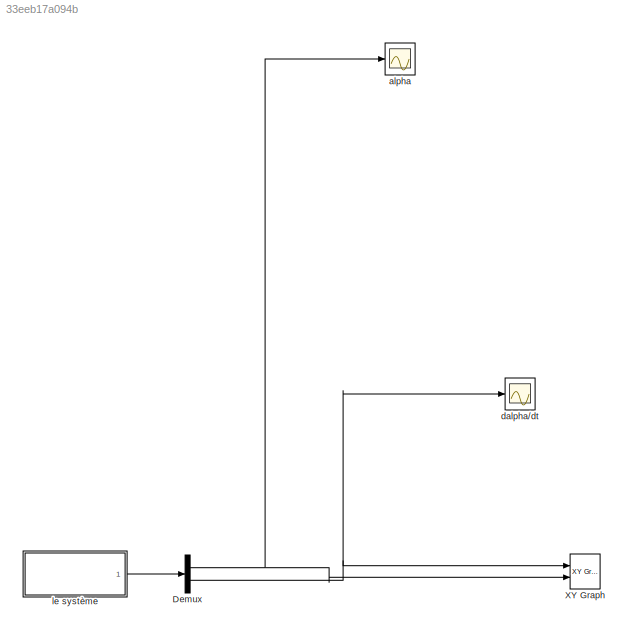
MODEL slx_33eeb17a094b
KIND model
CONFIG AbsTol = auto
CONFIG FixedStep = 0.1
CONFIG MaxStep = auto
CONFIG MinStep = auto
CONFIG RelTol = 1e-8
CONFIG SampleTimeConstraint = Unconstrained
CONFIG Solver = ode3
CONFIG SolverMode = Auto
CONFIG SolverName = ode3
CONFIG StartTime = 0.0
CONFIG StopTime = 100
BLOCK [Demux] Demux
  DisplayOption = bar
  Outputs = 2
  Ports = [1, 2]
BLOCK [Reference] XY Graph  REF=simulink/Sinks/XY Graph
  Ports = [2]
  SourceBlock = simulink/Sinks/XY Graph
  SourceType = XY scope.
  st = -1
  xmax = 1
  xmin = -1
  ymax = 1
  ymin = -1
BLOCK [Scope] alpha
  Floating = off
  NumInputPorts = 1
  Ports = [1]
BLOCK [Scope] dalpha//dt
  Floating = off
  NumInputPorts = 1
  Ports = [1]
  SaveName = ScopeData1
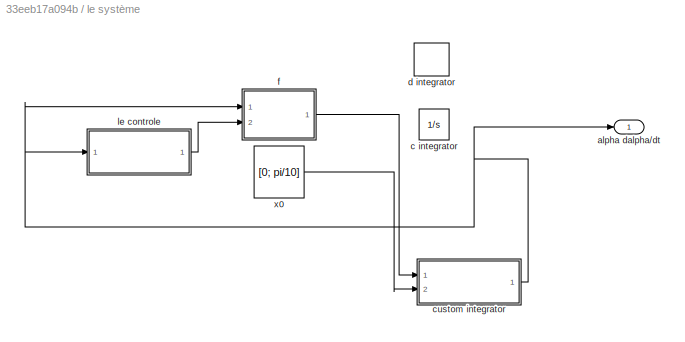
BLOCK [SubSystem] le système
  Ports = [0, 1]
  RequestExecContextInheritance = off
BLOCK [Outport] le système/alpha dalpha//dt
  IconDisplay = Port number
BLOCK [Integrator] le système/c integrator
  InitialConditionSource = external
  Ports = [2, 1]
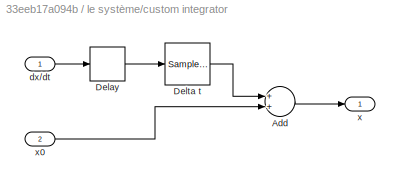
BLOCK [SubSystem] le système/custom integrator
  Ports = [2, 1]
  RequestExecContextInheritance = off
  TreatAsAtomicUnit = on
BLOCK [Sum] le système/custom integrator/Add
  InputSameDT = off
  OutDataTypeStr = Inherit: Inherit via internal rule
  Ports = [2, 1]
  SaturateOnIntegerOverflow = off
BLOCK [Delay] le système/custom integrator/Delay
  InputPortMap = u0
  Ports = [1, 1]
BLOCK [SampleTimeMath] le système/custom integrator/Delta t
  TsampMathOp = *
  weightValue = 1
BLOCK [Inport] le système/custom integrator/dx//dt
  IconDisplay = Port number
BLOCK [Outport] le système/custom integrator/x
  IconDisplay = Port number
BLOCK [Inport] le système/custom integrator/x0
  IconDisplay = Port number
  Port = 2
BLOCK [DiscreteIntegrator] le système/d integrator
  InitialConditionSetting = State (most efficient)
  InitialConditionSource = external
  Ports = [2, 1]
  SampleTime = 0.1
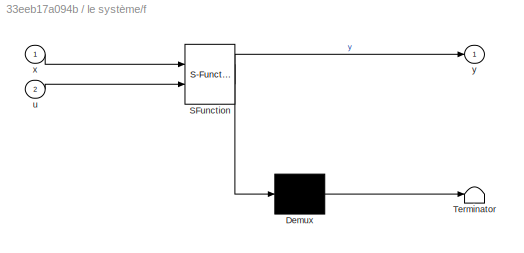
BLOCK [SubSystem] le système/f
  ErrorFcn = Stateflow.Translate.translate
  PermitHierarchicalResolution = ExplicitOnly
  Ports = [2, 1]
  RequestExecContextInheritance = off
  SFBlockType = MATLAB Function
  TreatAsAtomicUnit = on
BLOCK [Demux] le système/f/ Demux 
  Outputs = 1
  Ports = [1, 1]
BLOCK [S-Function] le système/f/ SFunction 
  EnableBusSupport = on
  FunctionName = sf_sfun
  PortCounts = [2 2]
  Ports = [2, 2]
  Tag = Stateflow S-Function part3 2
BLOCK [Terminator] le système/f/ Terminator 
BLOCK [Inport] le système/f/u
  IconDisplay = Port number
  Port = 2
BLOCK [Inport] le système/f/x
  IconDisplay = Port number
BLOCK [Outport] le système/f/y
  IconDisplay = Port number
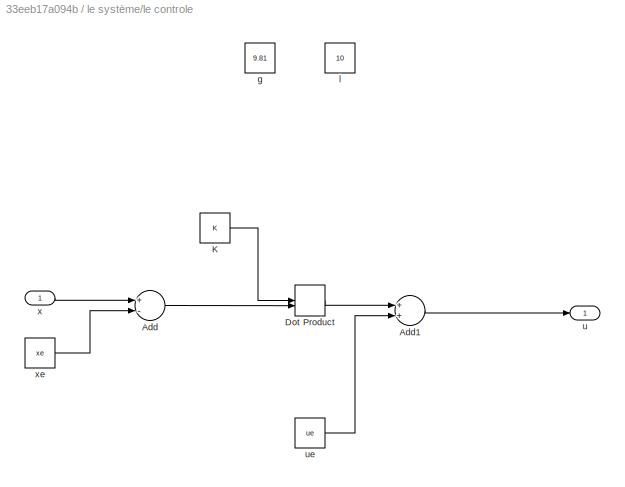
BLOCK [SubSystem] le système/le controle
  Ports = [1, 1]
  RequestExecContextInheritance = off
  TreatAsAtomicUnit = on
BLOCK [Sum] le système/le controle/Add
  InputSameDT = off
  Inputs = +-
  OutDataTypeStr = Inherit: Inherit via internal rule
  Ports = [2, 1]
  SaturateOnIntegerOverflow = off
BLOCK [Sum] le système/le controle/Add1
  InputSameDT = off
  OutDataTypeStr = Inherit: Inherit via internal rule
  Ports = [2, 1]
  SaturateOnIntegerOverflow = off
BLOCK [DotProduct] le système/le controle/Dot Product
  OutDataTypeStr = Inherit: Inherit via internal rule
BLOCK [Constant] le système/le controle/K
  Value = K
BLOCK [Constant] le système/le controle/g
  Value = 9.81
BLOCK [Constant] le système/le controle/l
  Value = 10
BLOCK [Outport] le système/le controle/u
  IconDisplay = Port number
BLOCK [Constant] le système/le controle/ue
  Value = ue
BLOCK [Inport] le système/le controle/x
  IconDisplay = Port number
BLOCK [Constant] le système/le controle/xe
  Value = xe
BLOCK [Constant] le système/x0
  Value = [0; pi/10]
NET Demux:1 -> XY Graph:2, alpha:1
NET Demux:2 -> XY Graph:1, dalpha//dt:1
LINE le système/custom integrator/Add:1 -> le système/custom integrator/x:1
LINE le système/custom integrator/Delay:1 -> le système/custom integrator/Delta t:1
LINE le système/custom integrator/Delta t:1 -> le système/custom integrator/Add:1
LINE le système/custom integrator/dx//dt:1 -> le système/custom integrator/Delay:1
LINE le système/custom integrator/x0:1 -> le système/custom integrator/Add:2
NET le système/custom integrator:1 -> le système/alpha dalpha//dt:1, le système/f:1, le système/le controle:1
LINE le système/f:1 -> le système/custom integrator:1
LINE le système/le controle/Add1:1 -> le système/le controle/u:1
LINE le système/le controle/Add:1 -> le système/le controle/Dot Product:2
LINE le système/le controle/Dot Product:1 -> le système/le controle/Add1:1
LINE le système/le controle/K:1 -> le système/le controle/Dot Product:1
LINE le système/le controle/ue:1 -> le système/le controle/Add1:2
LINE le système/le controle/x:1 -> le système/le controle/Add:1
LINE le système/le controle/xe:1 -> le système/le controle/Add:2
LINE le système/le controle:1 -> le système/f:2
LINE le système/x0:1 -> le système/custom integrator:2
LINE le système:1 -> Demux:1
note: NET lines group one-source signal fan-out (src -> all destinations, sorted); 1:1 wires keep LINE
CHART le système/f states=1 transitions=1
  STATE_LABEL 'eML_blk_kernel()'
  STATE_LABEL 'SCRIPT:\nfunction y = f(x, u)\n\ng = 9.81;\nl = 10;\n\ny = [x(2); (g/l) * sin(x(1)) - (1/l) * u * cos(x(1))];\n\nend'
